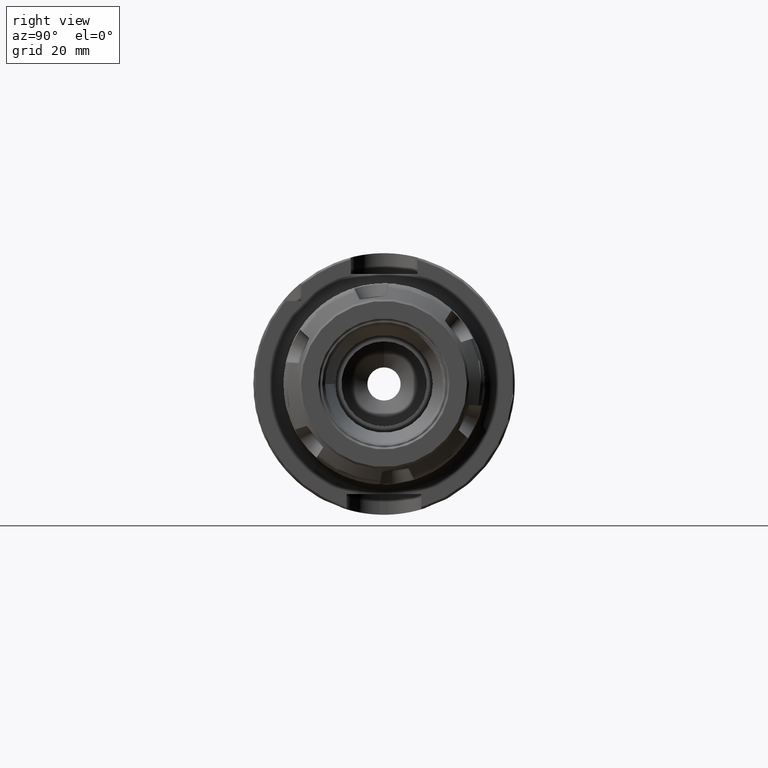
[diagram: clean part render]
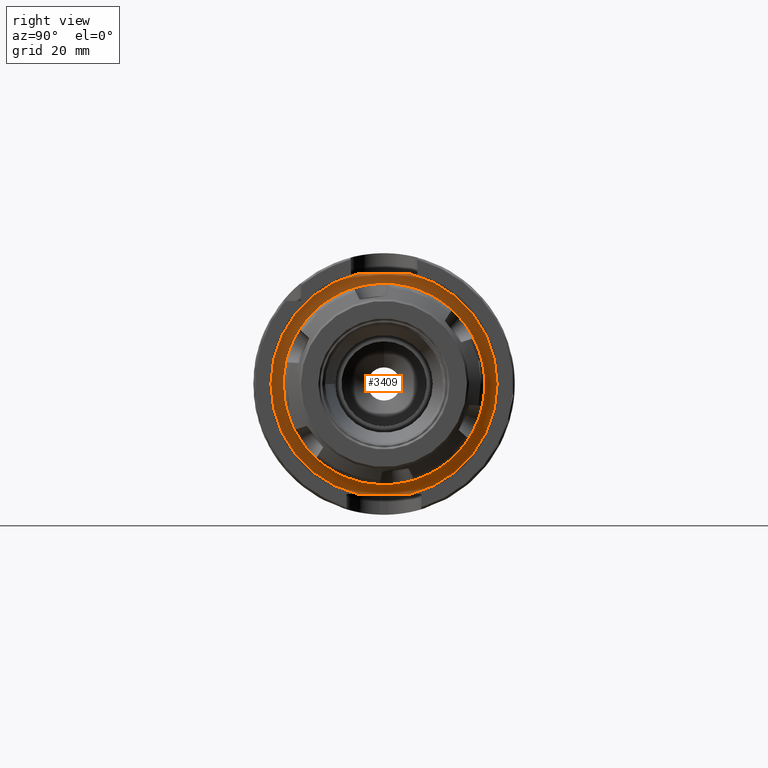
[diagram: same view with one face highlighted and labeled with its STEP entity id]
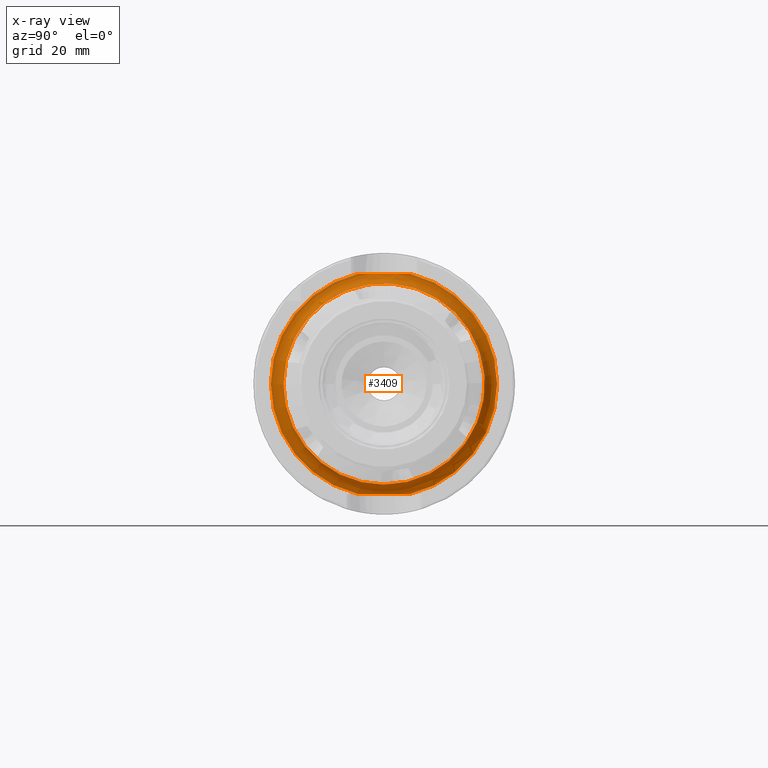
[diagram: x-ray of the same camera — body ghosted, the highlighted face saturated]
A machine part, right view. The second image highlights one B-rep face of the part: STEP entity #3409.
The next image is the same camera in x-ray: the body ghosted, the highlighted face saturated — about 3% of this face is hidden behind the body in this view.
In plain terms, the highlighted toroidal blend (fillet) surface has major radius 27.25 mm and minor (blend) radius 3 mm.
Its self-contained STEP definition (entity closure, byte-faithful):
#82=B_SPLINE_CURVE_WITH_KNOTS('',3,(#5214,#5215,#5216,#5217,#5218,#5219),
 .UNSPECIFIED.,.F.,.F.,(4,2,4),(2.96900154028155,3.38680642837817,3.56433966739828),
 .UNSPECIFIED.);
#83=B_SPLINE_CURVE_WITH_KNOTS('',3,(#5223,#5224,#5225,#5226,#5227,#5228,
#5229,#5230,#5231,#5232),.UNSPECIFIED.,.F.,.F.,(4,2,2,2,4),(2.37366341316482,
2.55119665218492,2.96900154028155,3.38680642837817,3.56433966739828),
 .UNSPECIFIED.);
#84=B_SPLINE_CURVE_WITH_KNOTS('',3,(#5235,#5236,#5237,#5238,#5239,#5240),
 .UNSPECIFIED.,.F.,.F.,(4,2,4),(2.37366341316482,2.55119665218492,2.96900154028155),
 .UNSPECIFIED.);
#261=TOROIDAL_SURFACE('',#3705,27.25,3.);
#360=FACE_OUTER_BOUND('',#563,.T.);
#563=EDGE_LOOP('',(#2324,#2325,#2326,#2327,#2328,#2329,#2330,#2331,#2332));
#1165=CIRCLE('',#3703,24.25);
#1166=CIRCLE('',#3704,24.25);
#1167=CIRCLE('',#3706,3.);
#1168=CIRCLE('',#3707,27.25);
#1169=CIRCLE('',#3708,27.25);
#1377=VERTEX_POINT('',#5205);
#1378=VERTEX_POINT('',#5207);
#1379=VERTEX_POINT('',#5211);
#1380=VERTEX_POINT('',#5213);
#1381=VERTEX_POINT('',#5220);
#1382=VERTEX_POINT('',#5222);
#1383=VERTEX_POINT('',#5233);
#1746=EDGE_CURVE('',#1378,#1377,#1165,.T.);
#1747=EDGE_CURVE('',#1377,#1378,#1166,.T.);
#1748=EDGE_CURVE('',#1378,#1379,#1167,.T.);
#1749=EDGE_CURVE('',#1380,#1379,#82,.F.);
#1750=EDGE_CURVE('',#1380,#1381,#1168,.T.);
#1751=EDGE_CURVE('',#1382,#1381,#83,.F.);
#1752=EDGE_CURVE('',#1382,#1383,#1169,.T.);
#1753=EDGE_CURVE('',#1379,#1383,#84,.F.);
#2324=ORIENTED_EDGE('',*,*,#1747,.T.);
#2325=ORIENTED_EDGE('',*,*,#1748,.T.);
#2326=ORIENTED_EDGE('',*,*,#1749,.F.);
#2327=ORIENTED_EDGE('',*,*,#1750,.T.);
#2328=ORIENTED_EDGE('',*,*,#1751,.F.);
#2329=ORIENTED_EDGE('',*,*,#1752,.T.);
#2330=ORIENTED_EDGE('',*,*,#1753,.F.);
#2331=ORIENTED_EDGE('',*,*,#1748,.F.);
#2332=ORIENTED_EDGE('',*,*,#1746,.T.);
#3409=ADVANCED_FACE('',(#360),#261,.F.);
#3703=AXIS2_PLACEMENT_3D('',#5208,#4181,#4182);
#3704=AXIS2_PLACEMENT_3D('',#5209,#4183,#4184);
#3705=AXIS2_PLACEMENT_3D('',#5210,#4185,#4186);
#3706=AXIS2_PLACEMENT_3D('',#5212,#4187,#4188);
#3707=AXIS2_PLACEMENT_3D('',#5221,#4189,#4190);
#3708=AXIS2_PLACEMENT_3D('',#5234,#4191,#4192);
#4181=DIRECTION('center_axis',(-1.,0.,0.));
#4182=DIRECTION('ref_axis',(0.,-1.,-1.22464679914735E-16));
#4183=DIRECTION('center_axis',(-1.,0.,0.));
#4184=DIRECTION('ref_axis',(0.,-1.,-1.22464679914735E-16));
#4185=DIRECTION('center_axis',(-1.,0.,0.));
#4186=DIRECTION('ref_axis',(0.,0.,1.));
#4187=DIRECTION('center_axis',(0.,-1.,1.22464679914735E-16));
#4188=DIRECTION('ref_axis',(0.,-1.22464679914735E-16,-1.));
#4189=DIRECTION('center_axis',(1.,0.,0.));
#4190=DIRECTION('ref_axis',(0.,-1.,-1.22464679914735E-16));
#4191=DIRECTION('center_axis',(1.,0.,0.));
#4192=DIRECTION('ref_axis',(0.,-1.,-1.22464679914735E-16));
#5205=CARTESIAN_POINT('',(29.,-24.25,-2.96976848793233E-15));
#5207=CARTESIAN_POINT('',(29.,-2.96976848793233E-15,-24.25));
#5208=CARTESIAN_POINT('Origin',(29.,0.,0.));
#5209=CARTESIAN_POINT('Origin',(29.,0.,0.));
#5210=CARTESIAN_POINT('Origin',(29.,0.,0.));
#5211=CARTESIAN_POINT('',(26.0952624903444,-1.27571231367488E-15,-26.5));
#5212=CARTESIAN_POINT('Origin',(29.,-3.33716252767654E-15,-27.25));
#5213=CARTESIAN_POINT('',(26.,6.34921254960016,-26.5));
#5214=CARTESIAN_POINT('Ctrl Pts',(26.0952624903444,6.93889390390723E-16,
-26.5));
#5215=CARTESIAN_POINT('Ctrl Pts',(26.0952624903444,1.39268296032208,-26.5));
#5216=CARTESIAN_POINT('Ctrl Pts',(26.0532358751414,3.0633740017458,-26.5));
#5217=CARTESIAN_POINT('Ctrl Pts',(26.0114501765799,5.0473944473855,-26.5));
#5218=CARTESIAN_POINT('Ctrl Pts',(26.,5.7574350861998,-26.5));
#5219=CARTESIAN_POINT('Ctrl Pts',(26.,6.34921254960015,-26.5));
#5220=CARTESIAN_POINT('',(26.,6.34921254960016,26.5));
#5221=CARTESIAN_POINT('Origin',(26.,0.,0.));
#5222=CARTESIAN_POINT('',(26.,-6.34921254960016,26.5));
#5223=CARTESIAN_POINT('Ctrl Pts',(26.,6.34921254960016,26.5));
#5224=CARTESIAN_POINT('Ctrl Pts',(26.,5.7574350861998,26.5));
#5225=CARTESIAN_POINT('Ctrl Pts',(26.0114501765799,5.0473944473855,26.5));
#5226=CARTESIAN_POINT('Ctrl Pts',(26.0532358751414,3.0633740017458,26.5));
#5227=CARTESIAN_POINT('Ctrl Pts',(26.0952624903444,1.39268296032208,26.5));
#5228=CARTESIAN_POINT('Ctrl Pts',(26.0952624903444,-1.39268296032208,26.5));
#5229=CARTESIAN_POINT('Ctrl Pts',(26.0532358751414,-3.0633740017458,26.5));
#5230=CARTESIAN_POINT('Ctrl Pts',(26.0114501765799,-5.0473944473855,26.5));
#5231=CARTESIAN_POINT('Ctrl Pts',(26.,-5.7574350861998,26.5));
#5232=CARTESIAN_POINT('Ctrl Pts',(26.,-6.34921254960016,26.5));
#5233=CARTESIAN_POINT('',(26.,-6.34921254960016,-26.5));
#5234=CARTESIAN_POINT('Origin',(26.,0.,0.));
#5235=CARTESIAN_POINT('Ctrl Pts',(26.,-6.34921254960016,-26.5));
#5236=CARTESIAN_POINT('Ctrl Pts',(26.,-5.7574350861998,-26.5));
#5237=CARTESIAN_POINT('Ctrl Pts',(26.0114501765799,-5.0473944473855,-26.5));
#5238=CARTESIAN_POINT('Ctrl Pts',(26.0532358751414,-3.0633740017458,-26.5));
#5239=CARTESIAN_POINT('Ctrl Pts',(26.0952624903444,-1.39268296032208,-26.5));
#5240=CARTESIAN_POINT('Ctrl Pts',(26.0952624903444,-1.38777878078145E-16,
-26.5));